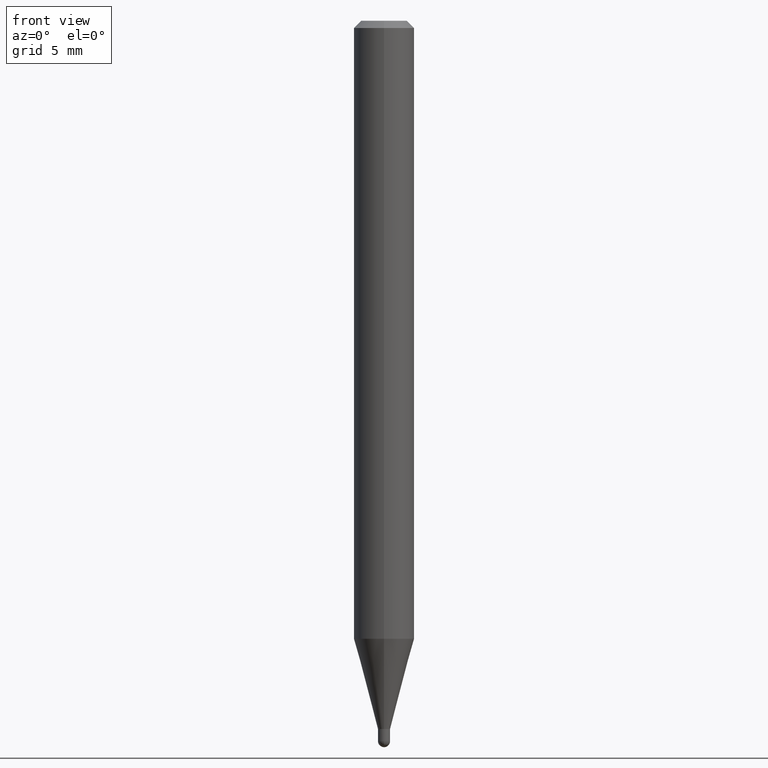
[diagram: clean part render]
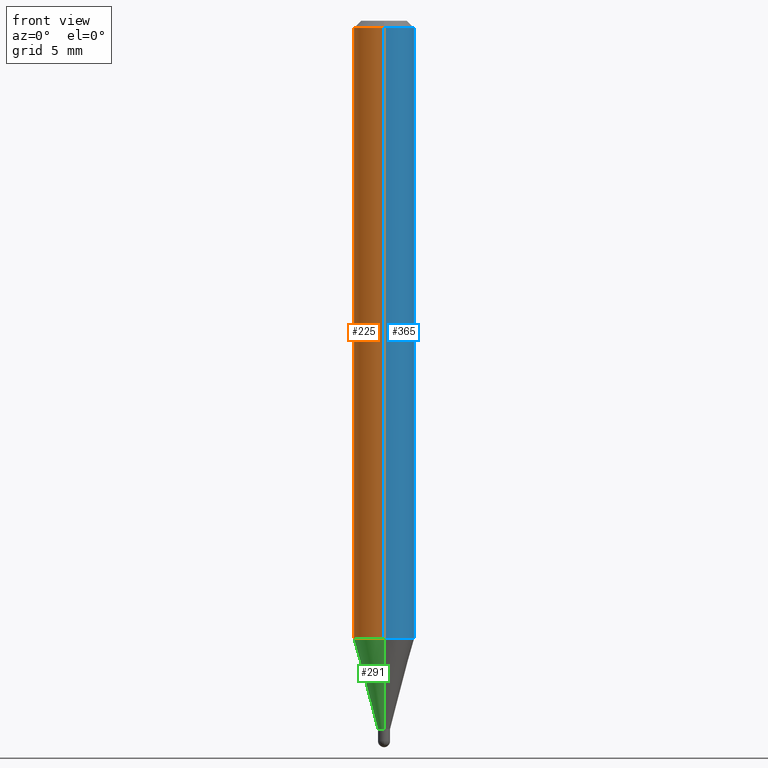
[diagram: same view with three faces highlighted in distinct colors, each labeled with its STEP entity id]
A machine part, front view with three faces highlighted in distinct colors.
Their STEP definitions:

[orange] entity #225 — the highlighted cylindrical surface (edge-blend (fillet) strip) has radius 1.5875 mm, axis along (-0, 0, 1).
#4 = VERTEX_POINT ( 'NONE', #353 ) ;
#30 = EDGE_CURVE ( 'NONE', #369, #4, #469, .T. ) ;
#32 = CARTESIAN_POINT ( 'NONE',  ( 3.120180388494611084E-29, -4.454753623834846326E-15, -1.275897459621562424 ) ) ;
#36 = DIRECTION ( 'NONE',  ( -2.445478956765124667E-29, 3.491466802634867700E-15, 1.000000000000000000 ) ) ;
#37 = EDGE_LOOP ( 'NONE', ( #503, #89, #449, #373 ) ) ;
#70 = DIRECTION ( 'NONE',  ( -2.445478956765124947E-29, 3.491466802634867700E-15, 1.000000000000000000 ) ) ;
#79 = FACE_OUTER_BOUND ( 'NONE', #37, .T. ) ;
#85 = CARTESIAN_POINT ( 'NONE',  ( 4.440892098500939734E-16, 0.06249999999999995143, -0.01500000000000022669 ) ) ;
#87 = EDGE_CURVE ( 'NONE', #296, #369, #148, .T. ) ;
#89 = ORIENTED_EDGE ( 'NONE', *, *, #237, .T. ) ;
#104 = EDGE_CURVE ( 'NONE', #250, #4, #236, .T. ) ;
#109 = DIRECTION ( 'NONE',  ( -6.982962677686265922E-15, -1.000000000000000000, 3.483106191921935554E-15 ) ) ;
#145 = CARTESIAN_POINT ( 'NONE',  ( 3.668218435147689277E-31, -5.237200203952304114E-17, -0.01500000000000000812 ) ) ;
#148 = LINE ( 'NONE', #343, #201 ) ;
#149 = AXIS2_PLACEMENT_3D ( 'NONE', #440, #36, #362 ) ;
#201 = VECTOR ( 'NONE', #70, 39.37007874015748143 ) ;
#225 = ADVANCED_FACE ( 'NONE', ( #79 ), #359, .T. ) ;
#232 = CIRCLE ( 'NONE', #301, 0.06250000000000000000 ) ;
#236 = LINE ( 'NONE', #498, #361 ) ;
#237 = EDGE_CURVE ( 'NONE', #296, #250, #232, .T. ) ;
#247 = DIRECTION ( 'NONE',  ( -6.982962677686265922E-15, -1.000000000000000000, 4.370956789862821150E-15 ) ) ;
#250 = VERTEX_POINT ( 'NONE', #358 ) ;
#290 = AXIS2_PLACEMENT_3D ( 'NONE', #145, #466, #109 ) ;
#296 = VERTEX_POINT ( 'NONE', #419 ) ;
#301 = AXIS2_PLACEMENT_3D ( 'NONE', #32, #324, #247 ) ;
#311 = DIRECTION ( 'NONE',  ( -2.445478956765124947E-29, 3.491466802634867700E-15, 1.000000000000000000 ) ) ;
#324 = DIRECTION ( 'NONE',  ( -2.445478956765124667E-29, 3.491466802634867700E-15, 1.000000000000000000 ) ) ;
#343 = CARTESIAN_POINT ( 'NONE',  ( 4.440892098500625669E-16, 0.06250000000000000000, -2.182166751646792313E-16 ) ) ;
#353 = CARTESIAN_POINT ( 'NONE',  ( -4.364351673553912750E-16, -0.06250000000000005551, -0.01499999999999979128 ) ) ;
#358 = CARTESIAN_POINT ( 'NONE',  ( -4.364351673553606080E-16, -0.06250000000000446865, -1.275897459621562202 ) ) ;
#359 = CYLINDRICAL_SURFACE ( 'NONE', #149, 0.06250000000000000000 ) ;
#361 = VECTOR ( 'NONE', #311, 39.37007874015748143 ) ;
#362 = DIRECTION ( 'NONE',  ( -6.982962677686265922E-15, -1.000000000000000000, 3.491466802634867700E-15 ) ) ;
#369 = VERTEX_POINT ( 'NONE', #85 ) ;
#373 = ORIENTED_EDGE ( 'NONE', *, *, #30, .F. ) ;
#419 = CARTESIAN_POINT ( 'NONE',  ( 4.440892098500936776E-16, 0.06249999999999554523, -1.275897459621562646 ) ) ;
#440 = CARTESIAN_POINT ( 'NONE',  ( 0.000000000000000000, 0.000000000000000000, 0.000000000000000000 ) ) ;
#449 = ORIENTED_EDGE ( 'NONE', *, *, #104, .T. ) ;
#466 = DIRECTION ( 'NONE',  ( -2.445478956765124667E-29, 3.491466802634867700E-15, 1.000000000000000000 ) ) ;
#469 = CIRCLE ( 'NONE', #290, 0.06250000000000000000 ) ;
#498 = CARTESIAN_POINT ( 'NONE',  ( -4.364351673553916201E-16, -0.06250000000000000000, 2.182166751646792313E-16 ) ) ;
#503 = ORIENTED_EDGE ( 'NONE', *, *, #87, .F. ) ;

[blue] entity #365 — the highlighted cylindrical surface (edge-blend (fillet) strip) has radius 1.5875 mm, axis along (-0, 0, 1).
#4 = VERTEX_POINT ( 'NONE', #353 ) ;
#13 = CARTESIAN_POINT ( 'NONE',  ( 3.668218435147689277E-31, -5.237200203952304114E-17, -0.01500000000000000812 ) ) ;
#29 = ORIENTED_EDGE ( 'NONE', *, *, #410, .F. ) ;
#45 = ORIENTED_EDGE ( 'NONE', *, *, #104, .F. ) ;
#70 = DIRECTION ( 'NONE',  ( -2.445478956765124947E-29, 3.491466802634867700E-15, 1.000000000000000000 ) ) ;
#85 = CARTESIAN_POINT ( 'NONE',  ( 4.440892098500939734E-16, 0.06249999999999995143, -0.01500000000000022669 ) ) ;
#87 = EDGE_CURVE ( 'NONE', #296, #369, #148, .T. ) ;
#95 = ORIENTED_EDGE ( 'NONE', *, *, #87, .T. ) ;
#104 = EDGE_CURVE ( 'NONE', #250, #4, #236, .T. ) ;
#111 = ORIENTED_EDGE ( 'NONE', *, *, #126, .T. ) ;
#125 = DIRECTION ( 'NONE',  ( -6.982962677686265922E-15, -1.000000000000000000, 3.483106191921935554E-15 ) ) ;
#126 = EDGE_CURVE ( 'NONE', #250, #296, #432, .T. ) ;
#136 = DIRECTION ( 'NONE',  ( -2.445478956765124667E-29, 3.491466802634867700E-15, 1.000000000000000000 ) ) ;
#141 = CIRCLE ( 'NONE', #274, 0.06250000000000000000 ) ;
#148 = LINE ( 'NONE', #343, #201 ) ;
#164 = CARTESIAN_POINT ( 'NONE',  ( 3.120180388494611084E-29, -4.454753623834846326E-15, -1.275897459621562424 ) ) ;
#170 = CARTESIAN_POINT ( 'NONE',  ( 0.000000000000000000, 0.000000000000000000, 0.000000000000000000 ) ) ;
#201 = VECTOR ( 'NONE', #70, 39.37007874015748143 ) ;
#215 = FACE_OUTER_BOUND ( 'NONE', #252, .T. ) ;
#236 = LINE ( 'NONE', #498, #361 ) ;
#250 = VERTEX_POINT ( 'NONE', #358 ) ;
#252 = EDGE_LOOP ( 'NONE', ( #111, #95, #29, #45 ) ) ;
#274 = AXIS2_PLACEMENT_3D ( 'NONE', #13, #136, #125 ) ;
#295 = DIRECTION ( 'NONE',  ( -6.982962677686265922E-15, -1.000000000000000000, 3.491466802634867700E-15 ) ) ;
#296 = VERTEX_POINT ( 'NONE', #419 ) ;
#311 = DIRECTION ( 'NONE',  ( -2.445478956765124947E-29, 3.491466802634867700E-15, 1.000000000000000000 ) ) ;
#327 = AXIS2_PLACEMENT_3D ( 'NONE', #164, #442, #401 ) ;
#343 = CARTESIAN_POINT ( 'NONE',  ( 4.440892098500625669E-16, 0.06250000000000000000, -2.182166751646792313E-16 ) ) ;
#353 = CARTESIAN_POINT ( 'NONE',  ( -4.364351673553912750E-16, -0.06250000000000005551, -0.01499999999999979128 ) ) ;
#358 = CARTESIAN_POINT ( 'NONE',  ( -4.364351673553606080E-16, -0.06250000000000446865, -1.275897459621562202 ) ) ;
#361 = VECTOR ( 'NONE', #311, 39.37007874015748143 ) ;
#363 = AXIS2_PLACEMENT_3D ( 'NONE', #170, #366, #295 ) ;
#365 = ADVANCED_FACE ( 'NONE', ( #215 ), #368, .T. ) ;
#366 = DIRECTION ( 'NONE',  ( -2.445478956765124667E-29, 3.491466802634867700E-15, 1.000000000000000000 ) ) ;
#368 = CYLINDRICAL_SURFACE ( 'NONE', #363, 0.06250000000000000000 ) ;
#369 = VERTEX_POINT ( 'NONE', #85 ) ;
#401 = DIRECTION ( 'NONE',  ( -6.982962677686265922E-15, -1.000000000000000000, 4.370956789862821150E-15 ) ) ;
#410 = EDGE_CURVE ( 'NONE', #4, #369, #141, .T. ) ;
#419 = CARTESIAN_POINT ( 'NONE',  ( 4.440892098500936776E-16, 0.06249999999999554523, -1.275897459621562646 ) ) ;
#432 = CIRCLE ( 'NONE', #327, 0.06250000000000000000 ) ;
#442 = DIRECTION ( 'NONE',  ( -2.445478956765124667E-29, 3.491466802634867700E-15, 1.000000000000000000 ) ) ;
#498 = CARTESIAN_POINT ( 'NONE',  ( -4.364351673553916201E-16, -0.06250000000000000000, 2.182166751646792313E-16 ) ) ;

[green] entity #291 — the highlighted conical surface has half-angle 15 deg.
#32 = CARTESIAN_POINT ( 'NONE',  ( 3.120180388494611084E-29, -4.454753623834846326E-15, -1.275897459621562424 ) ) ;
#33 = AXIS2_PLACEMENT_3D ( 'NONE', #360, #245, #326 ) ;
#38 = CARTESIAN_POINT ( 'NONE',  ( 3.576512974268995298E-29, -5.106270198853495599E-15, -1.462500000000000355 ) ) ;
#55 = ORIENTED_EDGE ( 'NONE', *, *, #237, .F. ) ;
#62 = LINE ( 'NONE', #226, #211 ) ;
#80 = DIRECTION ( 'NONE',  ( -2.445478956765124667E-29, 3.491466802634867700E-15, 1.000000000000000000 ) ) ;
#103 = VECTOR ( 'NONE', #203, 39.37007874015748854 ) ;
#107 = DIRECTION ( 'NONE',  ( 1.839019923739652380E-15, 0.2588190451025322858, 0.9659258262890650926 ) ) ;
#115 = LINE ( 'NONE', #161, #103 ) ;
#129 = AXIS2_PLACEMENT_3D ( 'NONE', #38, #80, #436 ) ;
#152 = VERTEX_POINT ( 'NONE', #404 ) ;
#156 = CIRCLE ( 'NONE', #129, 0.01249999999999992610 ) ;
#161 = CARTESIAN_POINT ( 'NONE',  ( -8.728703347104204628E-17, -0.01250000000000503313, -1.462500000000000355 ) ) ;
#198 = EDGE_CURVE ( 'NONE', #152, #350, #156, .T. ) ;
#203 = DIRECTION ( 'NONE',  ( -1.807323732225381415E-15, -0.2588190451025255134, 0.9659258262890669799 ) ) ;
#206 = FACE_OUTER_BOUND ( 'NONE', #493, .T. ) ;
#207 = ORIENTED_EDGE ( 'NONE', *, *, #216, .T. ) ;
#211 = VECTOR ( 'NONE', #107, 39.37007874015748143 ) ;
#216 = EDGE_CURVE ( 'NONE', #350, #250, #115, .T. ) ;
#218 = CONICAL_SURFACE ( 'NONE', #33, 0.01249999999999992610, 0.2617993877991578455 ) ;
#226 = CARTESIAN_POINT ( 'NONE',  ( 8.881784197004774341E-17, 0.01249999999999481907, -1.462500000000000355 ) ) ;
#232 = CIRCLE ( 'NONE', #301, 0.06250000000000000000 ) ;
#237 = EDGE_CURVE ( 'NONE', #296, #250, #232, .T. ) ;
#245 = DIRECTION ( 'NONE',  ( -2.445478956765124667E-29, 3.491466802634867700E-15, 1.000000000000000000 ) ) ;
#247 = DIRECTION ( 'NONE',  ( -6.982962677686265922E-15, -1.000000000000000000, 4.370956789862821150E-15 ) ) ;
#250 = VERTEX_POINT ( 'NONE', #358 ) ;
#289 = ORIENTED_EDGE ( 'NONE', *, *, #198, .T. ) ;
#291 = ADVANCED_FACE ( 'NONE', ( #206 ), #218, .T. ) ;
#296 = VERTEX_POINT ( 'NONE', #419 ) ;
#301 = AXIS2_PLACEMENT_3D ( 'NONE', #32, #324, #247 ) ;
#324 = DIRECTION ( 'NONE',  ( -2.445478956765124667E-29, 3.491466802634867700E-15, 1.000000000000000000 ) ) ;
#326 = DIRECTION ( 'NONE',  ( -6.982962677686266711E-15, -1.000000000000000000, 0.000000000000000000 ) ) ;
#350 = VERTEX_POINT ( 'NONE', #492 ) ;
#358 = CARTESIAN_POINT ( 'NONE',  ( -4.364351673553606080E-16, -0.06250000000000446865, -1.275897459621562202 ) ) ;
#360 = CARTESIAN_POINT ( 'NONE',  ( 3.576512974268995298E-29, -5.106270198853495599E-15, -1.462500000000000355 ) ) ;
#367 = ORIENTED_EDGE ( 'NONE', *, *, #464, .F. ) ;
#404 = CARTESIAN_POINT ( 'NONE',  ( 2.664535259100708892E-16, 0.01249999999999481907, -1.462500000000000355 ) ) ;
#419 = CARTESIAN_POINT ( 'NONE',  ( 4.440892098500936776E-16, 0.06249999999999554523, -1.275897459621562646 ) ) ;
#436 = DIRECTION ( 'NONE',  ( -6.982962677686266711E-15, -1.000000000000000000, 0.000000000000000000 ) ) ;
#464 = EDGE_CURVE ( 'NONE', #152, #296, #62, .T. ) ;
#492 = CARTESIAN_POINT ( 'NONE',  ( -8.728703347104204628E-17, -0.01250000000000503313, -1.462500000000000355 ) ) ;
#493 = EDGE_LOOP ( 'NONE', ( #367, #289, #207, #55 ) ) ;